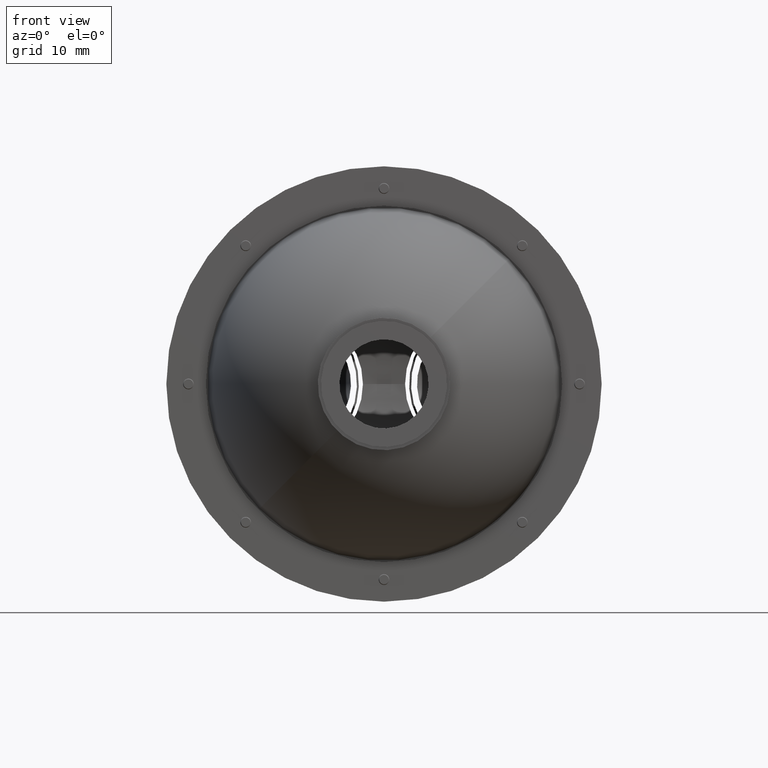
[diagram: clean part render]
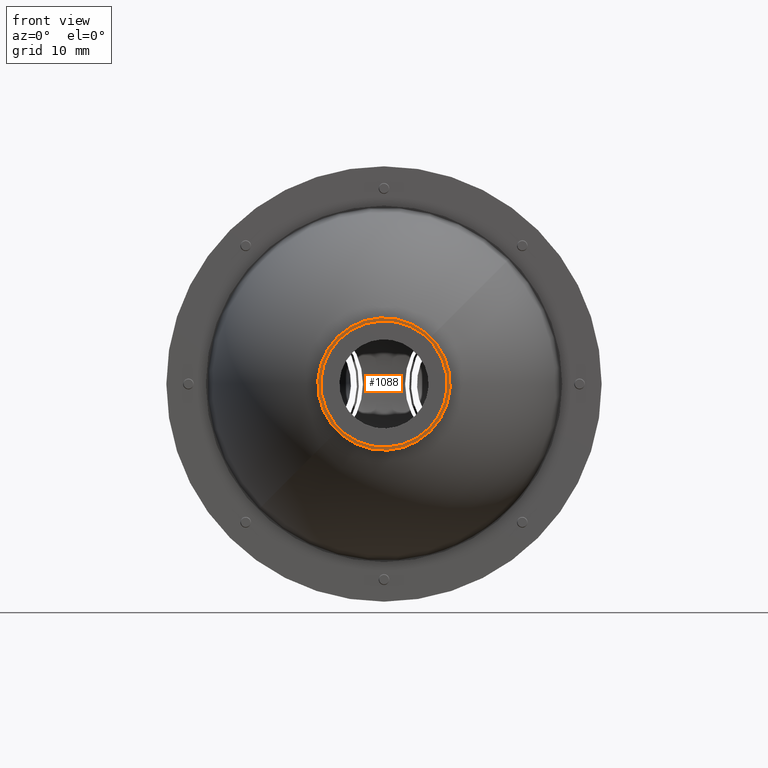
[diagram: same view with one face highlighted and labeled with its STEP entity id]
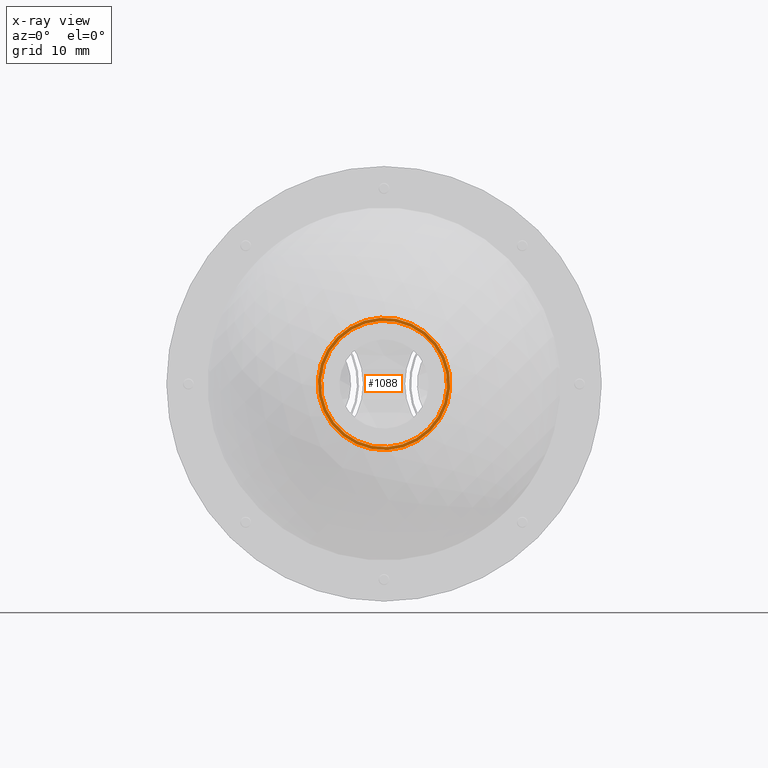
[diagram: x-ray of the same camera — body ghosted, the highlighted face saturated]
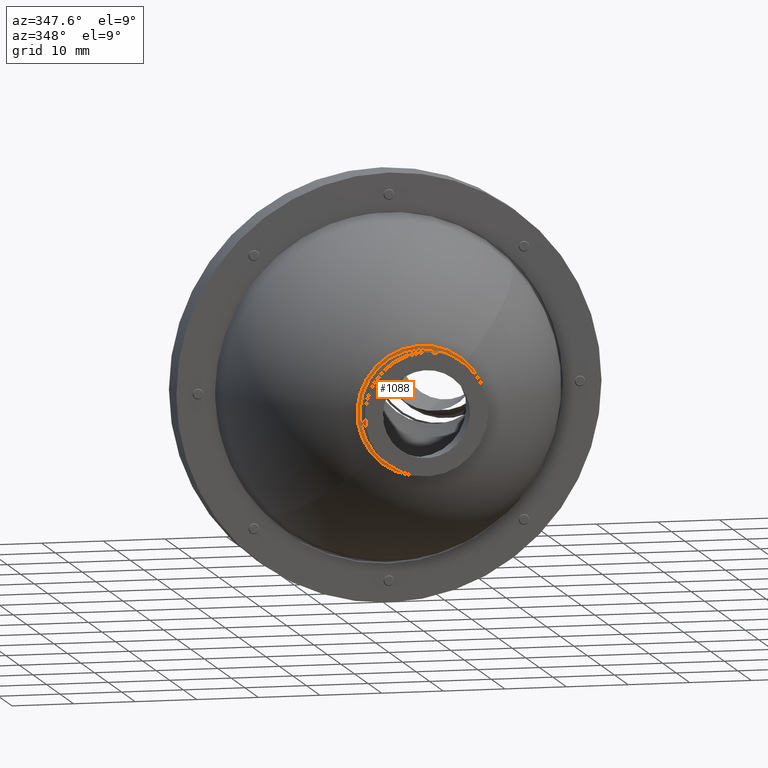
[diagram: same view with one face highlighted and labeled with its STEP entity id]
A machine part, front view. The second image highlights one B-rep face of the part: STEP entity #1088.
The next image is the same camera in x-ray: the body ghosted, the highlighted face saturated — about 0% of this face is hidden behind the body in this view.
A second angle (auxiliary view) of the same face is appended — the face is thin or edge-on in the first view.
In plain terms, the highlighted planar face has unit normal (-0, 1, 0).
Its self-contained STEP definition (entity closure, byte-faithful):
#92 = CARTESIAN_POINT ( 'NONE',  ( 8.484018949608341131, -45.46425954842823813, 5.180723808624168802E-16 ) ) ;
#675 = CARTESIAN_POINT ( 'NONE',  ( 8.484018949608341131, -45.46425954842823103, 5.180723808624170774E-16 ) ) ;
#1088 = ADVANCED_FACE ( 'NONE', ( #3447, #7845 ), #6010, .F. ) ;
#1098 = EDGE_LOOP ( 'NONE', ( #6530, #6390 ) ) ;
#1250 = AXIS2_PLACEMENT_3D ( 'NONE', #7990, #1936, #6153 ) ;
#1368 = EDGE_CURVE ( 'NONE', #2416, #2244, #4652, .T. ) ;
#1489 = VERTEX_POINT ( 'NONE', #5492 ) ;
#1551 = EDGE_CURVE ( 'NONE', #7479, #1489, #3738, .T. ) ;
#1917 = CIRCLE ( 'NONE', #3871, 10.00000000000000000 ) ;
#1936 = DIRECTION ( 'NONE',  ( -6.492176973796427489E-17, 1.000000000000000000, 6.925509685190237264E-17 ) ) ;
#2027 = CIRCLE ( 'NONE', #2415, 10.50000000000000355 ) ;
#2191 = DIRECTION ( 'NONE',  ( -0.9844927593900340002, 0.000000000000000000, -0.1754252168549220725 ) ) ;
#2244 = VERTEX_POINT ( 'NONE', #6826 ) ;
#2415 = AXIS2_PLACEMENT_3D ( 'NONE', #92, #3220, #2191 ) ;
#2416 = VERTEX_POINT ( 'NONE', #6561 ) ;
#2847 = DIRECTION ( 'NONE',  ( -6.492176973796426257E-17, 1.000000000000000000, 6.925509685190237264E-17 ) ) ;
#3220 = DIRECTION ( 'NONE',  ( -6.492176973796427489E-17, 1.000000000000000000, 6.925509685190237264E-17 ) ) ;
#3447 = FACE_BOUND ( 'NONE', #1098, .T. ) ;
#3527 = CARTESIAN_POINT ( 'NONE',  ( 8.484018949608341131, -45.46425954842823813, 5.180723808624168802E-16 ) ) ;
#3537 = ORIENTED_EDGE ( 'NONE', *, *, #4951, .F. ) ;
#3738 = CIRCLE ( 'NONE', #1250, 10.00000000000000000 ) ;
#3870 = AXIS2_PLACEMENT_3D ( 'NONE', #7879, #2847, #4037 ) ;
#3871 = AXIS2_PLACEMENT_3D ( 'NONE', #675, #6229, #8020 ) ;
#4037 = DIRECTION ( 'NONE',  ( -0.9844927593900340002, -5.176592185025924086E-17, -0.1754252168549220725 ) ) ;
#4063 = DIRECTION ( 'NONE',  ( -0.9844927593900340002, 0.000000000000000000, -0.1754252168549220725 ) ) ;
#4652 = CIRCLE ( 'NONE', #4916, 10.50000000000000355 ) ;
#4916 = AXIS2_PLACEMENT_3D ( 'NONE', #3527, #5947, #4063 ) ;
#4951 = EDGE_CURVE ( 'NONE', #2244, #2416, #2027, .T. ) ;
#4967 = CARTESIAN_POINT ( 'NONE',  ( -1.360908644292000869, -45.46425954842823813, -1.754252168549220503 ) ) ;
#5492 = CARTESIAN_POINT ( 'NONE',  ( 18.32894654350868180, -45.46425954842823813, 1.754252168549222723 ) ) ;
#5651 = EDGE_CURVE ( 'NONE', #1489, #7479, #1917, .T. ) ;
#5947 = DIRECTION ( 'NONE',  ( -6.492176973796427489E-17, 1.000000000000000000, 6.925509685190237264E-17 ) ) ;
#6010 = PLANE ( 'NONE',  #3870 ) ;
#6153 = DIRECTION ( 'NONE',  ( 0.9844927593900341112, 0.000000000000000000, 0.1754252168549221003 ) ) ;
#6229 = DIRECTION ( 'NONE',  ( -6.492176973796427489E-17, 1.000000000000000000, 6.925509685190237264E-17 ) ) ;
#6390 = ORIENTED_EDGE ( 'NONE', *, *, #5651, .T. ) ;
#6429 = ORIENTED_EDGE ( 'NONE', *, *, #1368, .F. ) ;
#6530 = ORIENTED_EDGE ( 'NONE', *, *, #1551, .T. ) ;
#6561 = CARTESIAN_POINT ( 'NONE',  ( 18.82119292320370008, -45.46425954842823813, 1.841964776976683593 ) ) ;
#6826 = CARTESIAN_POINT ( 'NONE',  ( -1.853155023987019367, -45.46425954842823813, -1.841964776976681817 ) ) ;
#7479 = VERTEX_POINT ( 'NONE', #4967 ) ;
#7845 = FACE_OUTER_BOUND ( 'NONE', #8014, .T. ) ;
#7879 = CARTESIAN_POINT ( 'NONE',  ( 8.484018949608341131, -45.46425954842823813, 5.180723808624168802E-16 ) ) ;
#7990 = CARTESIAN_POINT ( 'NONE',  ( 8.484018949608341131, -45.46425954842823103, 5.180723808624170774E-16 ) ) ;
#8014 = EDGE_LOOP ( 'NONE', ( #3537, #6429 ) ) ;
#8020 = DIRECTION ( 'NONE',  ( 0.9844927593900341112, 0.000000000000000000, 0.1754252168549221003 ) ) ;